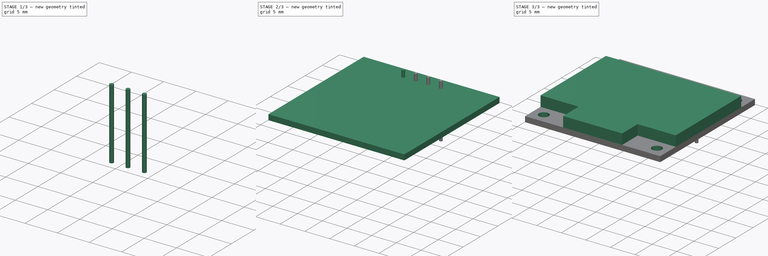
[diagram: build sequence overview — one tinted view per stage of 3, left to right]
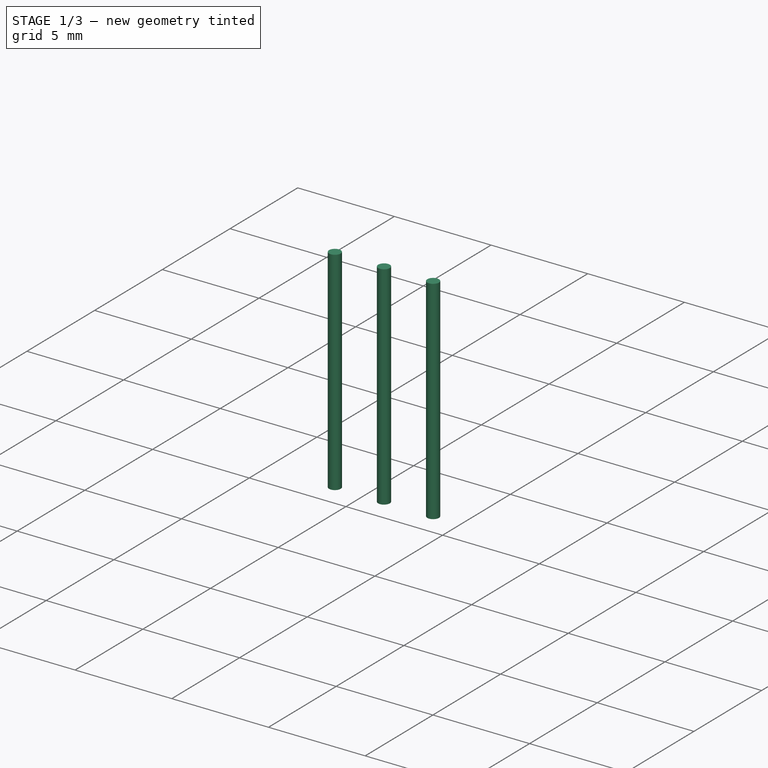
[diagram: stage 1 of 3 — iso view after this stage's code; geometry added in this stage tinted green]
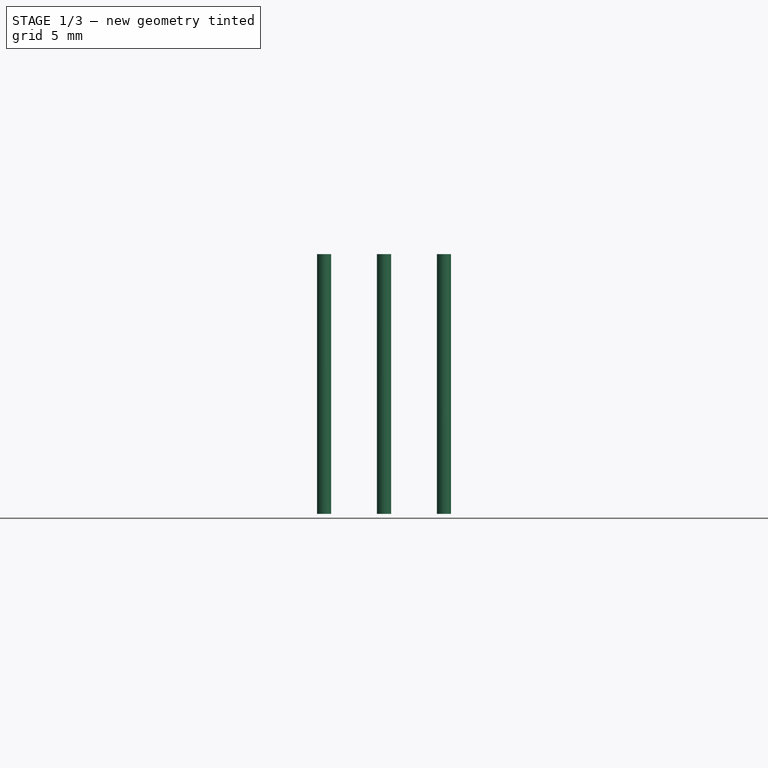
[diagram: stage 1 of 3 — front view after this stage's code; geometry added in this stage tinted green]
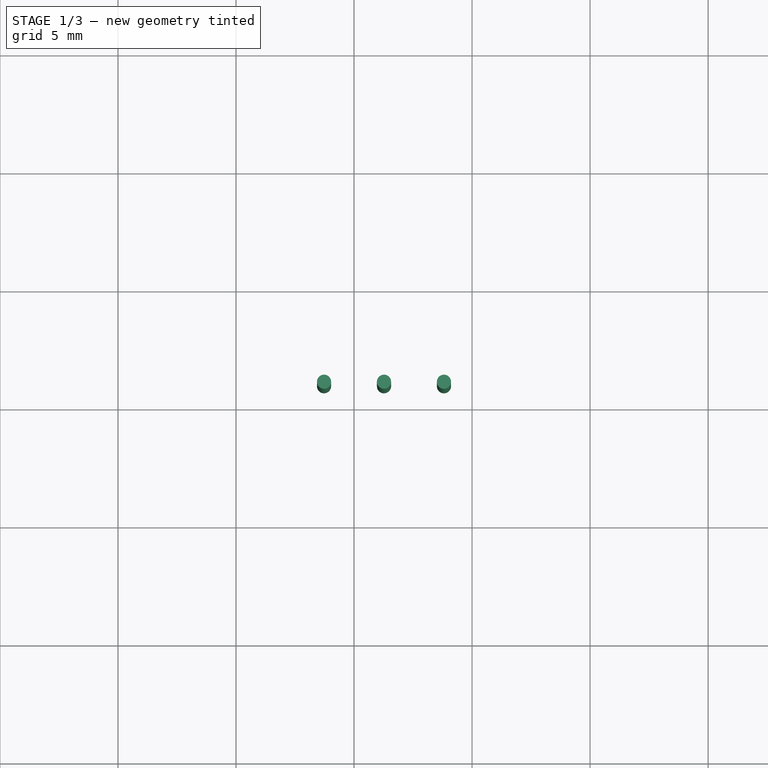
[diagram: stage 1 of 3 — top view after this stage's code; geometry added in this stage tinted green]
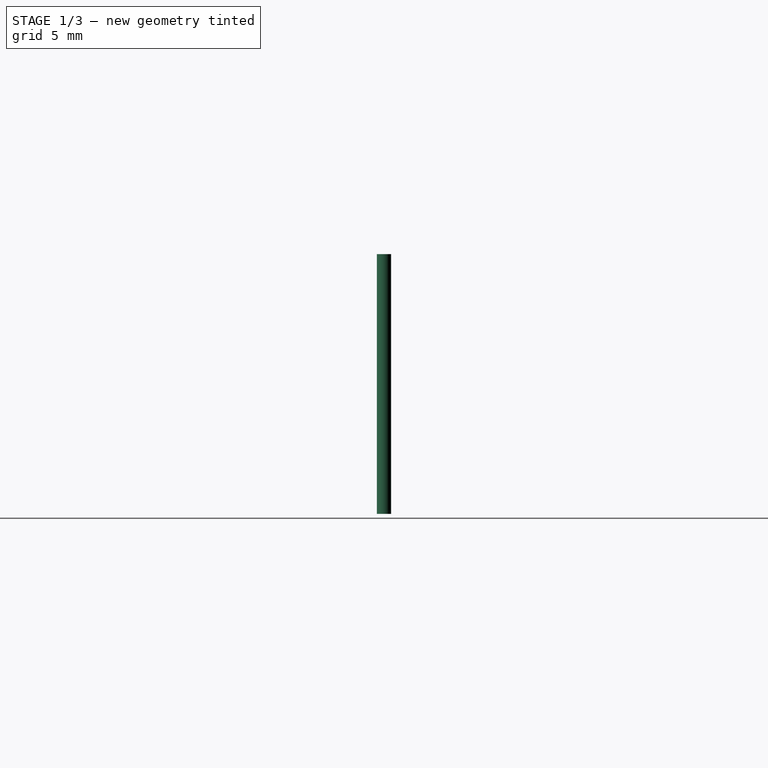
[diagram: stage 1 of 3 — right view after this stage's code; geometry added in this stage tinted green]
FCSTD DOCUMENT  (FreeCAD 0.18.4R)
Label: OLED
License: All rights reserved
LicenseURL: http://en.wikipedia.org/wiki/All_rights_reserved
objects: Part::Cylinder×4, Sketcher::SketchObject×3, PartDesign::Pad×2, PartDesign::Pocket×1, PartDesign::Body×1, Part::MultiFuse×1
note: 15 computed .brp shape members not serialized (recipe doc carries the construction recipe); baked Part::Feature solids carry a one-line shape summary decoded from their .brp

FEATURE [Part::Cylinder] Cylinder001  label="Zylinder001"
  Angle = 360
  AttacherType = Attacher::AttachEngine3D
  Height = 11
  Placement = pos=(-1.27,11,-8.5) rot=(0,0,1;0rad)
  Radius = 0.3
FEATURE [Part::Cylinder] Cylinder002  label="Zylinder002"
  Angle = 360
  AttacherType = Attacher::AttachEngine3D
  Height = 11
  Placement = pos=(3.81,11,-8.5) rot=(0,0,1;0rad)
  Radius = 0.3
FEATURE [Part::Cylinder] Cylinder003  label="Zylinder003"
  Angle = 360
  AttacherType = Attacher::AttachEngine3D
  Height = 11
  Placement = pos=(1.27,11,-8.5) rot=(0,0,1;0rad)
  Radius = 0.3
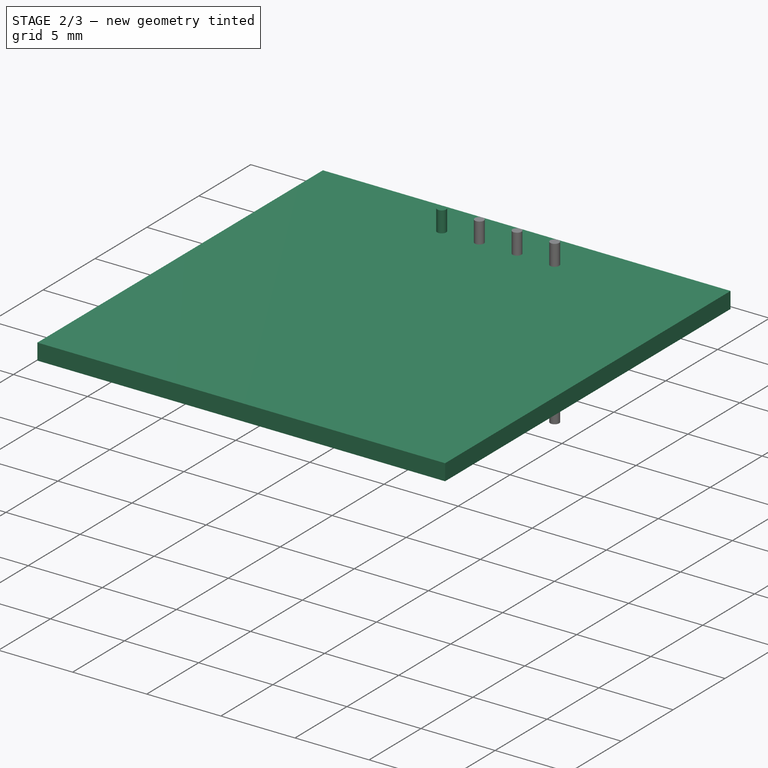
[diagram: stage 2 of 3 — iso view after this stage's code; geometry added in this stage tinted green]
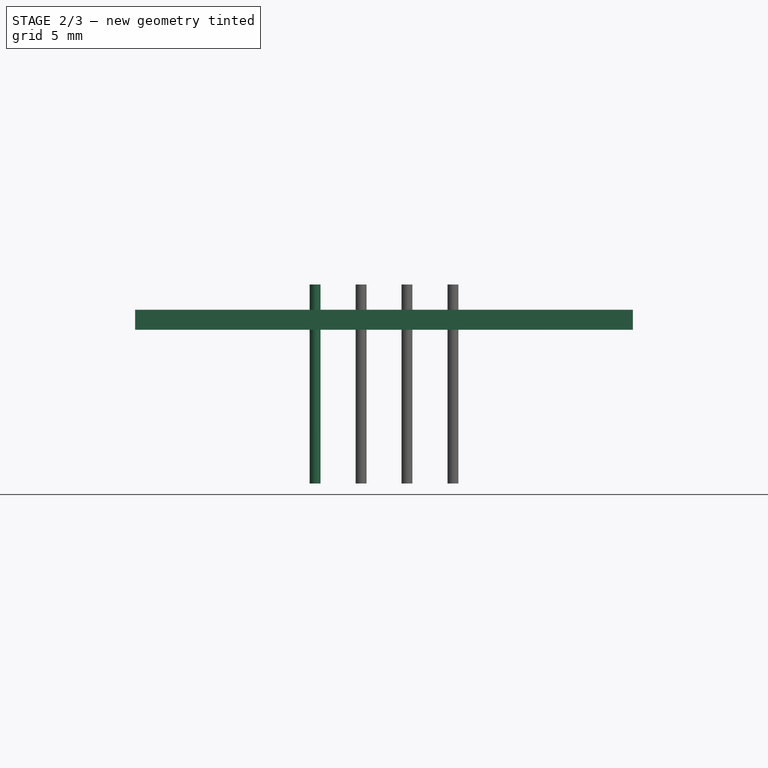
[diagram: stage 2 of 3 — front view after this stage's code; geometry added in this stage tinted green]
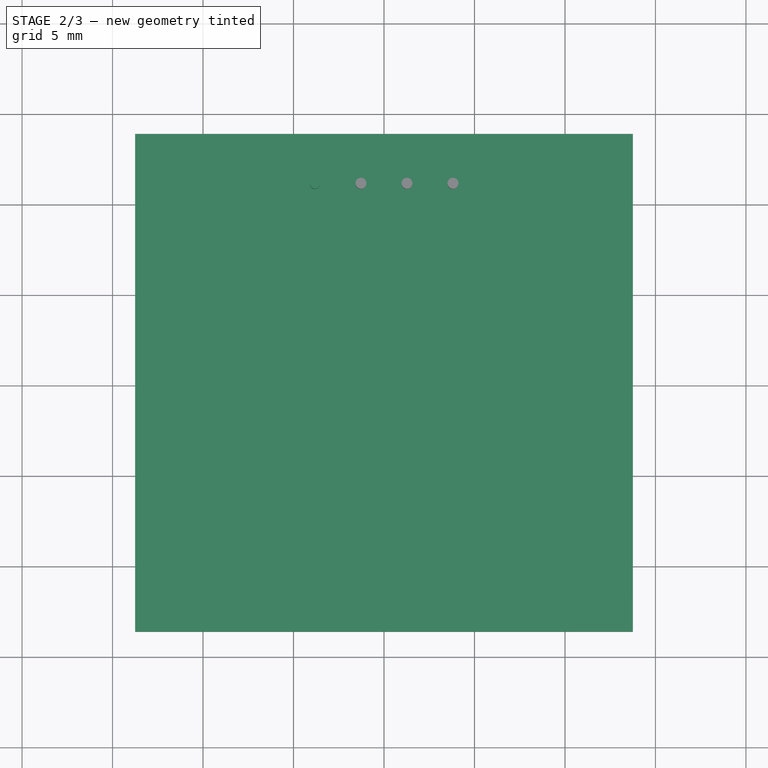
[diagram: stage 2 of 3 — top view after this stage's code; geometry added in this stage tinted green]
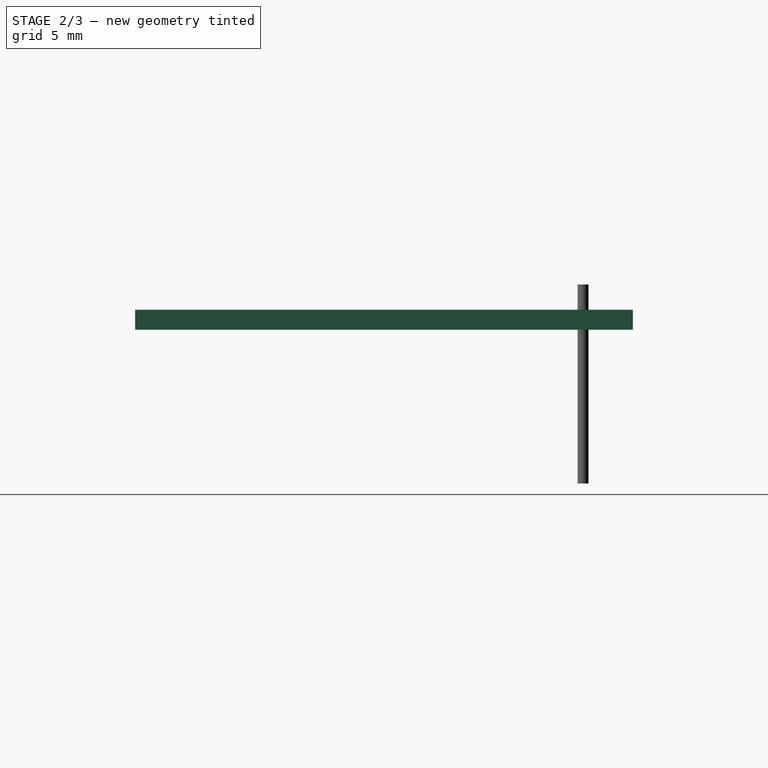
[diagram: stage 2 of 3 — right view after this stage's code; geometry added in this stage tinted green]
FEATURE [Sketcher::SketchObject] Sketch
  MapMode = 5
  Support = -> [XY_Plane]
  sketch-geometry (4):
    g0: LineSegment StartX=-13.75 StartY=13.75 StartZ=0 EndX=13.75 EndY=13.75 EndZ=0
    g1: LineSegment StartX=13.75 StartY=13.75 StartZ=0 EndX=13.75 EndY=-13.75 EndZ=0
    g2: LineSegment StartX=13.75 StartY=-13.75 StartZ=0 EndX=-13.75 EndY=-13.75 EndZ=0
    g3: LineSegment StartX=-13.75 StartY=-13.75 StartZ=0 EndX=-13.75 EndY=13.75 EndZ=0
  constraints (10):
    c: Coincident(g0,g1)
    c: Coincident(g1,g2)
    c: Coincident(g2,g3)
    c: Coincident(g3,g0)
    c: Horizontal(g2)
    c: Vertical(g3)
    c: Equal(g0,g1)
    c: Symmetric(g0,g0,g-2)
    c: Symmetric(g1,g0,g-1)
    c: DistanceX(g0,g0) = 27.5
FEATURE [PartDesign::Pad] Pad
  Length = 1.1
  Length2 = 100
  Profile = -> Sketch
  Type = 0
FEATURE [PartDesign::Body] Body
  Group = -> [Sketch,Pad,Sketch001,Pocket,Sketch002,Pad001]
  Origin = -> Origin
  Tip = -> Pad001
FEATURE [Part::Cylinder] Cylinder  label="Zylinder"
  Angle = 360
  AttacherType = Attacher::AttachEngine3D
  Height = 11
  Placement = pos=(-3.81,11,-8.5) rot=(0,0,1;0rad)
  Radius = 0.3
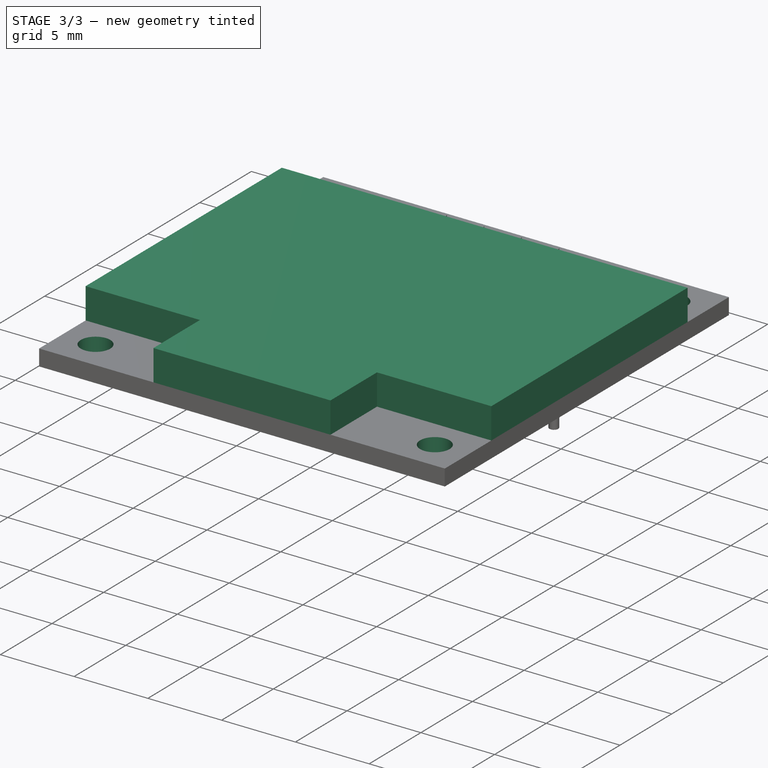
[diagram: stage 3 of 3 — iso view after this stage's code; geometry added in this stage tinted green]
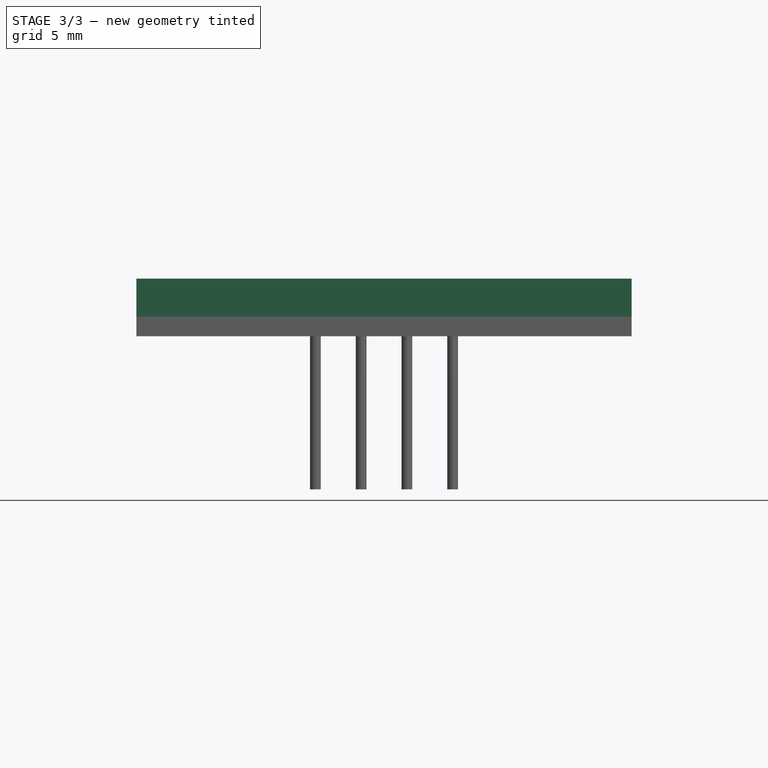
[diagram: stage 3 of 3 — front view after this stage's code; geometry added in this stage tinted green]
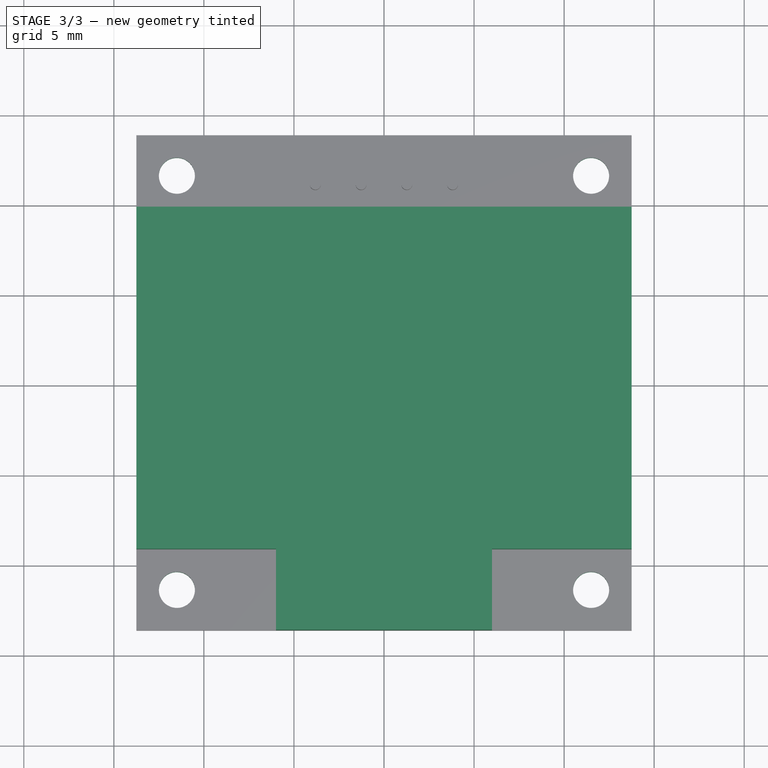
[diagram: stage 3 of 3 — top view after this stage's code; geometry added in this stage tinted green]
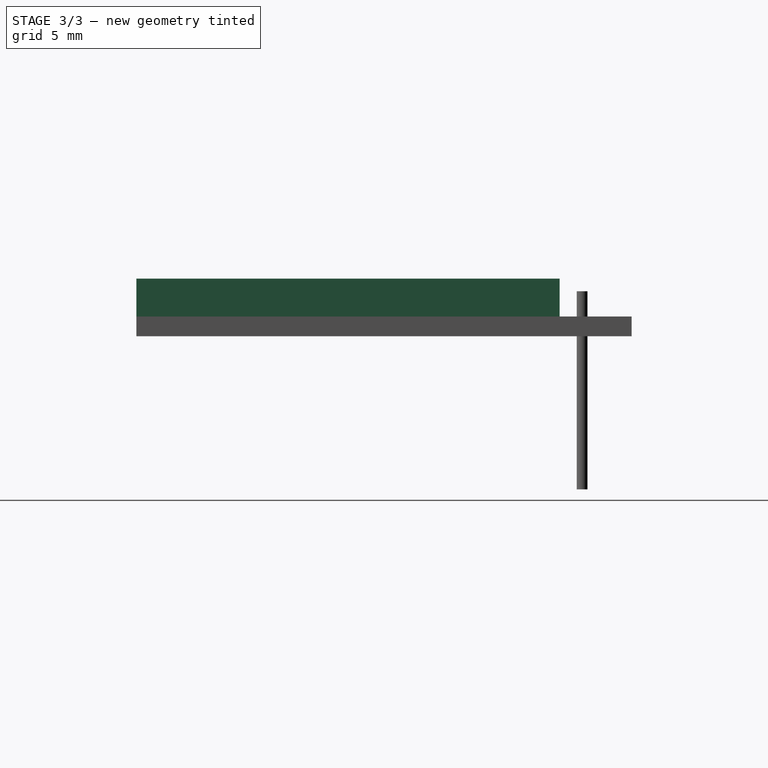
[diagram: stage 3 of 3 — right view after this stage's code; geometry added in this stage tinted green]
FEATURE [Sketcher::SketchObject] Sketch001
  MapMode = 5
  Support = -> [XY_Plane]
  sketch-geometry (8):
    g0: Circle CenterX=-11.5 CenterY=11.5 CenterZ=0 NormalX=0 NormalY=0 NormalZ=1 AngleXU=0 Radius=1
    g1: Circle CenterX=11.5 CenterY=11.5 CenterZ=0 NormalX=0 NormalY=0 NormalZ=1 AngleXU=0 Radius=1
    g2: Circle CenterX=11.5 CenterY=-11.5 CenterZ=0 NormalX=0 NormalY=0 NormalZ=1 AngleXU=0 Radius=1
    g3: Circle CenterX=-11.5 CenterY=-11.5 CenterZ=0 NormalX=0 NormalY=0 NormalZ=1 AngleXU=0 Radius=1
    g4: LineSegment [constr] StartX=-11.5 StartY=11.5 StartZ=0 EndX=11.5 EndY=11.5 EndZ=0
    g5: LineSegment [constr] StartX=11.5 StartY=11.5 StartZ=0 EndX=11.5 EndY=-11.5 EndZ=0
    g6: LineSegment [constr] StartX=11.5 StartY=-11.5 StartZ=0 EndX=-11.5 EndY=-11.5 EndZ=0
    g7: LineSegment [constr] StartX=-11.5 StartY=-11.5 StartZ=0 EndX=-11.5 EndY=11.5 EndZ=0
  constraints (18):
    c: Equal(g0,g1)
    c: Equal(g1,g2)
    c: Equal(g2,g3)
    c: Coincident(g4,g5)
    c: Coincident(g5,g6)
    c: Coincident(g6,g7)
    c: Coincident(g7,g4)
    c: Horizontal(g6)
    c: Vertical(g7)
    c: Coincident(g1,g4)
    c: Coincident(g0,g4)
    c: Coincident(g3,g6)
    c: Coincident(g2,g5)
    c: Equal(g5,g4)
    c: Symmetric(g1,g0,g-2)
    c: Symmetric(g1,g2,g-1)
    c: DistanceX(g4,g4) = 23
    c: Diameter(g1) = 2
FEATURE [PartDesign::Pocket] Pocket
  BaseFeature = -> Pad
  Length = 1.1
  Length2 = 100
  Profile = -> Sketch001
  Reversed = true
  Type = 0
FEATURE [Sketcher::SketchObject] Sketch002
  ExternalGeometry = -> [Pocket]
  MapMode = 5
  Placement = pos=(0,0,1.1) rot=(0,0,1;0rad)
  Support = -> [Pocket]
  sketch-geometry (8):
    g0: LineSegment StartX=-13.75 StartY=9.75 StartZ=0 EndX=13.75 EndY=9.75 EndZ=0
    g1: LineSegment StartX=13.75 StartY=9.75 StartZ=0 EndX=13.75 EndY=-9.25 EndZ=0
    g2: LineSegment StartX=13.75 StartY=-9.25 StartZ=0 EndX=6 EndY=-9.25 EndZ=0
    g3: LineSegment StartX=6 StartY=-9.25 StartZ=0 EndX=6 EndY=-13.75 EndZ=0
    g4: LineSegment StartX=6 StartY=-13.75 StartZ=0 EndX=-6 EndY=-13.75 EndZ=0
    g5: LineSegment StartX=-6 StartY=-13.75 StartZ=0 EndX=-6 EndY=-9.25 EndZ=0
    g6: LineSegment StartX=-6 StartY=-9.25 StartZ=0 EndX=-13.75 EndY=-9.25 EndZ=0
    g7: LineSegment StartX=-13.75 StartY=-9.25 StartZ=0 EndX=-13.75 EndY=9.75 EndZ=0
  constraints (23):
    c: PointOnObject(g0,g-3)
    c: PointOnObject(g0,g-4)
    c: Horizontal(g0)
    c: Coincident(g1,g0)
    c: PointOnObject(g1,g-4)
    c: Coincident(g2,g1)
    c: Horizontal(g2)
    c: Coincident(g3,g2)
    c: PointOnObject(g3,g-5)
    c: Vertical(g3)
    c: Coincident(g4,g3)
    c: Coincident(g5,g4)
    c: Vertical(g5)
    c: Coincident(g6,g5)
    c: PointOnObject(g6,g-3)
    c: Horizontal(g6)
    c: Coincident(g7,g6)
    c: Coincident(g7,g0)
    c: DistanceX(g4,g4) = 12
    c: Symmetric(g3,g4,g-2)
    c: Horizontal(g2,g5)
    c: DistanceY(g-5,g0) = 23.5
    c: DistanceY(g1,g1) = 19
FEATURE [PartDesign::Pad] Pad001
  BaseFeature = -> Pocket
  Length = 2.1
  Length2 = 100
  Profile = -> Sketch002
  Type = 0
FEATURE [Part::MultiFuse] Fusion
  Shapes = -> [Body,Cylinder,Cylinder001,Cylinder002,Cylinder003]
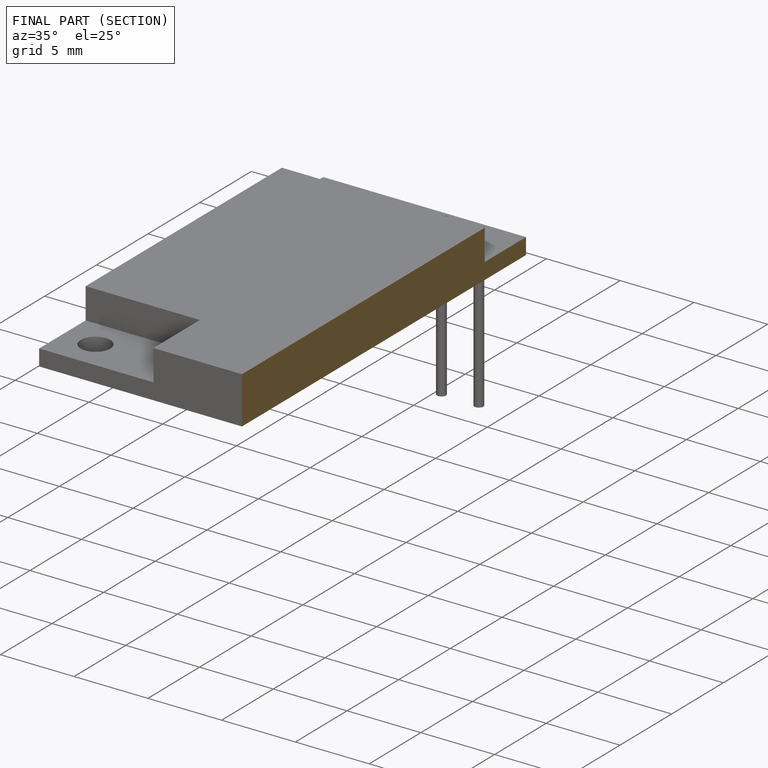
[diagram: finished part — half-section view (interior)]
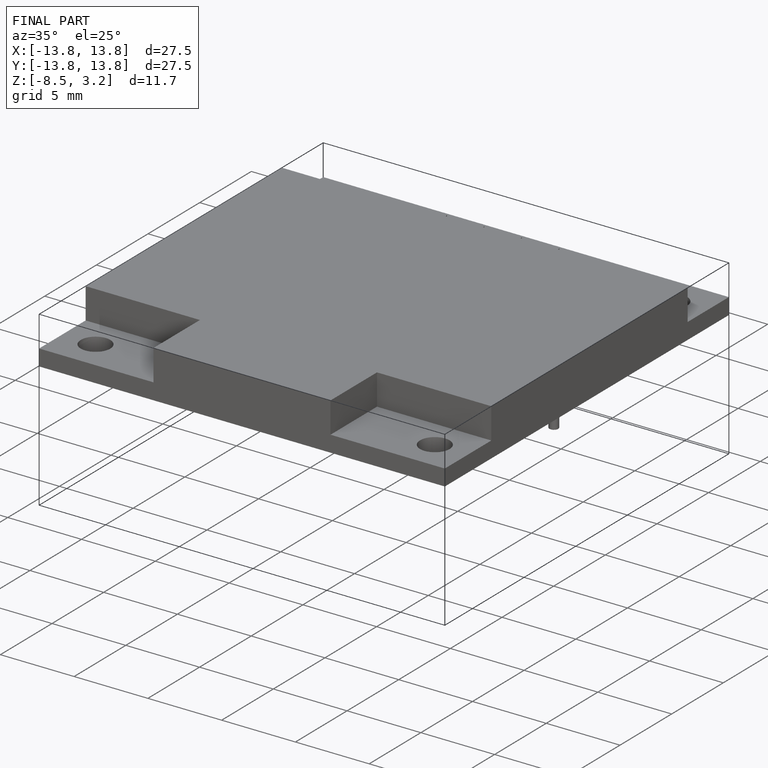
[diagram: finished part — iso view with bounding-box wireframe]
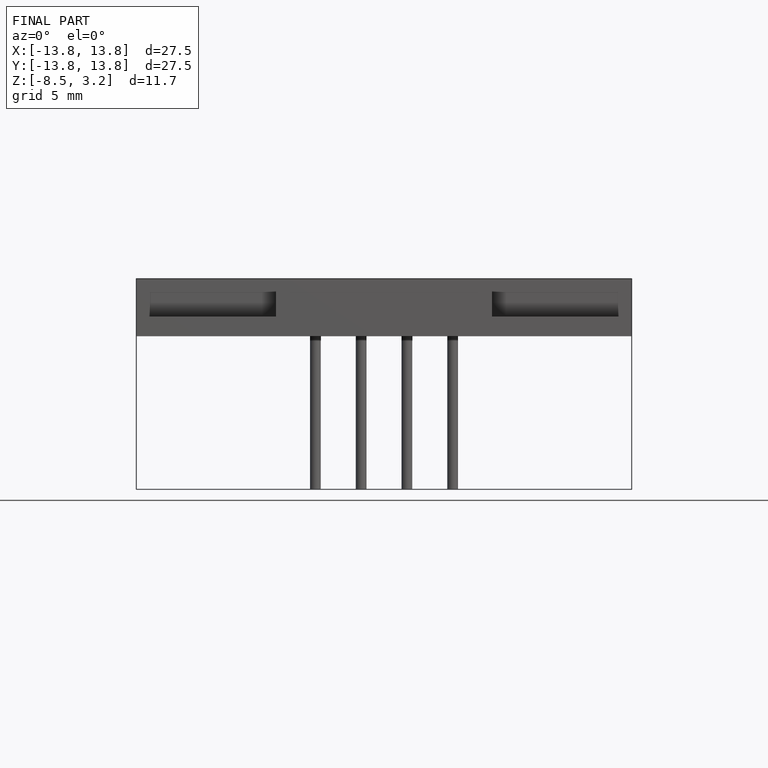
[diagram: finished part — front view with bounding-box wireframe]
